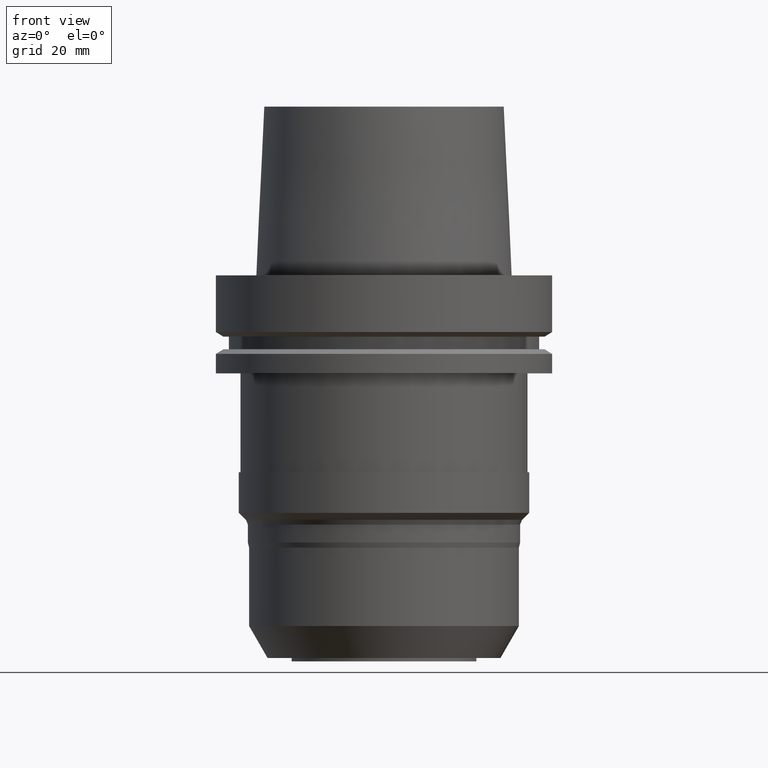
[diagram: clean part render]
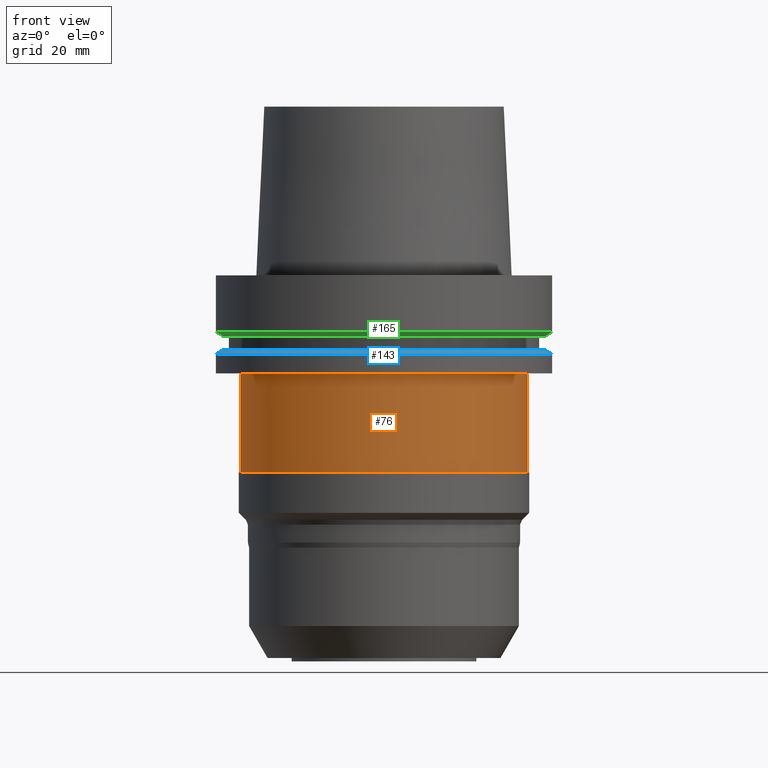
[diagram: same view with three faces highlighted in distinct colors, each labeled with its STEP entity id]
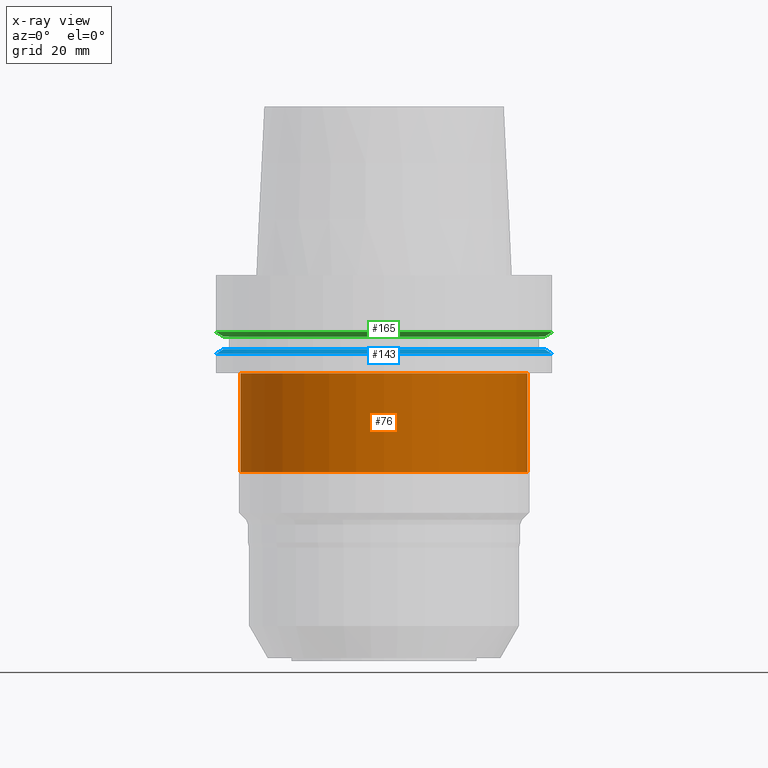
[diagram: x-ray of the same camera — body ghosted, the three highlighted faces saturated]
A machine part, front view with three faces highlighted in distinct colors.
The next image is the same camera in x-ray (body ghosted, the three faces saturated) — at least one of them is partly hidden behind the body in this view.
Their STEP definitions:

[orange] entity #76 — the highlighted cylindrical surface (bore or boss wall) has radius 42.5 mm, axis along (0, 0, -1).
#76=ADVANCED_FACE('Unnamed[1]',(#211,#212),#213,.T.);
#113=EDGE_CURVE('Unnamed[1]',#269,#269,#270,.T.);
#162=EDGE_CURVE('Unnamed[1]',#346,#346,#347,.T.);
#211=FACE_BOUND('',#402,.T.);
#212=FACE_BOUND('',#403,.T.);
#213=CYLINDRICAL_SURFACE('',#404,42.4999999999993);
#269=VERTEX_POINT('',#475);
#270=CIRCLE('',#476,42.4999999999988);
#346=VERTEX_POINT('',#570);
#347=CIRCLE('',#571,42.5);
#402=EDGE_LOOP('',(#627));
#403=EDGE_LOOP('',(#628));
#404=AXIS2_PLACEMENT_3D('',#629,#630,#631);
#475=CARTESIAN_POINT('',(1.77573785876361E-015,42.4999999999987,-28.9999999999991));
#476=AXIS2_PLACEMENT_3D('',#693,#694,#695);
#570=CARTESIAN_POINT('',(3.56984541951448E-015,42.4999999999999,-58.2999999999991));
#571=AXIS2_PLACEMENT_3D('',#778,#779,#780);
#627=ORIENTED_EDGE('',*,*,#162,.F.);
#628=ORIENTED_EDGE('',*,*,#113,.T.);
#629=CARTESIAN_POINT('',(2.67279163913904E-015,-2.60228719132528E-014,-43.6499999999991));
#630=DIRECTION('',(6.12323399573677E-017,5.38768000306656E-016,-1.0));
#631=DIRECTION('',(-3.78171780836962E-032,1.0,5.38768000306656E-016));
#693=CARTESIAN_POINT('',(1.77573785876361E-015,-3.39158231177452E-014,-28.9999999999991));
#694=DIRECTION('',(6.12323399573677E-017,5.38768000306664E-016,-1.0));
#695=DIRECTION('',(-3.78171780836967E-032,1.0,5.38768000306664E-016));
#778=CARTESIAN_POINT('',(3.56984541951448E-015,-1.81299207087605E-014,-58.2999999999991));
#779=DIRECTION('',(6.12323399573677E-017,5.38768000306649E-016,-1.0));
#780=DIRECTION('',(-3.78171780836957E-032,1.0,5.38768000306649E-016));

[blue] entity #143 — the highlighted conical surface has half-angle 60 deg.
#104=EDGE_CURVE('Unnamed[1]',#256,#256,#257,.T.);
#109=EDGE_CURVE('Unnamed[1]',#263,#263,#264,.T.);
#143=ADVANCED_FACE('Unnamed[1]',(#317,#318),#319,.T.);
#256=VERTEX_POINT('',#458);
#257=CIRCLE('',#459,50.0000000000001);
#263=VERTEX_POINT('',#467);
#264=CIRCLE('',#468,47.6225952641917);
#317=FACE_BOUND('',#534,.T.);
#318=FACE_BOUND('',#535,.T.);
#319=CONICAL_SURFACE('',#536,48.8112976320959,1.04719755119658);
#458=CARTESIAN_POINT('',(1.42350465640822E-015,50.0,-23.2475952641907));
#459=AXIS2_PLACEMENT_3D('',#679,#680,#681);
#467=CARTESIAN_POINT('',(1.33945743656736E-015,47.6225952641917,-21.8749999999991));
#468=AXIS2_PLACEMENT_3D('',#687,#688,#689);
#534=EDGE_LOOP('',(#748));
#535=EDGE_LOOP('',(#749));
#536=AXIS2_PLACEMENT_3D('',#750,#751,#752);
#679=CARTESIAN_POINT('',(1.42350465640822E-015,-3.70150347142112E-014,-23.2475952641908));
#680=DIRECTION('',(6.12323399573677E-017,5.38768000306617E-016,-1.0));
#681=DIRECTION('',(-3.78171780836941E-032,1.0,5.38768000306617E-016));
#687=CARTESIAN_POINT('',(1.33945743656736E-015,-3.77545451199301E-014,-21.8749999999991));
#688=DIRECTION('',(6.12323399573677E-017,5.38768000306671E-016,-1.0));
#689=DIRECTION('',(-3.78171780837001E-032,1.0,5.38768000306671E-016));
#748=ORIENTED_EDGE('',*,*,#104,.F.);
#749=ORIENTED_EDGE('',*,*,#109,.T.);
#750=CARTESIAN_POINT('',(1.38148104648779E-015,-3.73847899170706E-014,-22.5612976320949));
#751=DIRECTION('',(6.12323399573677E-017,5.38768000306677E-016,-1.0));
#752=DIRECTION('',(-3.78171780837007E-032,1.0,5.38768000306677E-016));

[green] entity #165 — the highlighted conical surface has half-angle 60 deg.
#155=EDGE_CURVE('Unnamed[1]',#335,#335,#336,.T.);
#165=ADVANCED_FACE('Unnamed[1]',(#350,#351),#352,.T.);
#170=EDGE_CURVE('Unnamed[1]',#359,#359,#360,.T.);
#335=VERTEX_POINT('',#556);
#336=CIRCLE('',#557,47.6225952641917);
#350=FACE_BOUND('',#575,.T.);
#351=FACE_BOUND('',#576,.T.);
#352=CONICAL_SURFACE('',#577,48.8112976320959,1.04719755119659);
#359=VERTEX_POINT('',#586);
#360=CIRCLE('',#587,50.0000000000001);
#556=CARTESIAN_POINT('',(1.10983616172729E-015,47.6225952641917,-18.125));
#557=AXIS2_PLACEMENT_3D('',#766,#767,#768);
#575=EDGE_LOOP('',(#782));
#576=EDGE_LOOP('',(#783));
#577=AXIS2_PLACEMENT_3D('',#784,#785,#786);
#586=CARTESIAN_POINT('',(1.02578894188643E-015,50.0,-16.7524047358083));
#587=AXIS2_PLACEMENT_3D('',#793,#794,#795);
#766=CARTESIAN_POINT('',(1.10983616172729E-015,-3.97749251210795E-014,-18.125));
#767=DIRECTION('',(6.12323399573677E-017,5.38768000306671E-016,-1.0));
#768=DIRECTION('',(-3.78171780837001E-032,1.0,5.38768000306671E-016));
#782=ORIENTED_EDGE('',*,*,#155,.F.);
#783=ORIENTED_EDGE('',*,*,#170,.T.);
#784=CARTESIAN_POINT('',(1.06781255180686E-015,-4.0144680323939E-014,-17.4387023679042));
#785=DIRECTION('',(-6.12323399573677E-017,-5.38768000306677E-016,1.0));
#786=DIRECTION('',(-3.78171780837007E-032,1.0,5.38768000306677E-016));
#793=CARTESIAN_POINT('',(1.02578894188643E-015,-4.05144355267984E-014,-16.7524047358084));
#794=DIRECTION('',(6.12323399573677E-017,5.38768000306617E-016,-1.0));
#795=DIRECTION('',(-3.78171780836941E-032,1.0,5.38768000306617E-016));